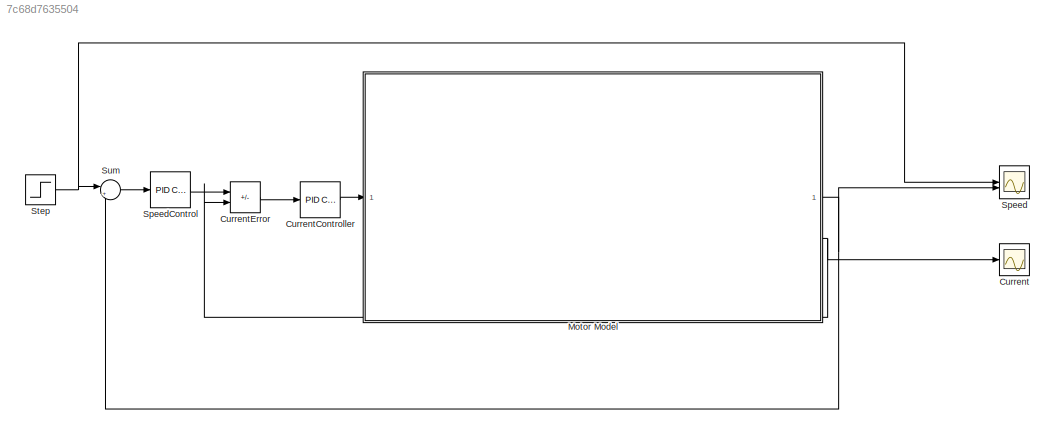
MODEL slx_7c68d7635504
KIND model
CONFIG AbsTol = auto
CONFIG EnableMultiTasking = off
CONFIG FixedStep = auto
CONFIG MaxStep = auto
CONFIG MinStep = auto
CONFIG RelTol = 1e-3
CONFIG SampleTimeConstraint = Unconstrained
CONFIG SolverName = VariableStepAuto
CONFIG StartTime = 0.0
CONFIG StopTime = 10.0
BLOCK [Scope] Current
  Floating = off
  NumInputPorts = 1
  ScopeSpecificationString = Simulink.scopes.TimeScopeBlockCfg('CurrentConfiguration', extmgr.ConfigurationSet(extmgr.Configuration('Core','General UI',true),extmgr.Configuration('Core','Source UI',true),extmgr.Configuration('Sources','WiredSimulink',true,'DataLoggingVariableName','ScopeData3'),extmgr.Configuration('Visuals','Time Domain',true,'SerializedDisplays',{struct('MinYLimReal','-5.76743','MaxYLimReal','51.90689','YLa...<+1465ch>
BLOCK [Reference] CurrentController  REF=slpidlib/PID Controller
  LibrarySourceBlock = simulink/Continuous/PID Controller
  SourceBlock = slpidlib/PID Controller
  SourceType = PID 1dof
BLOCK [Sum] CurrentError
  IconShape = rectangular
  Inputs = +-
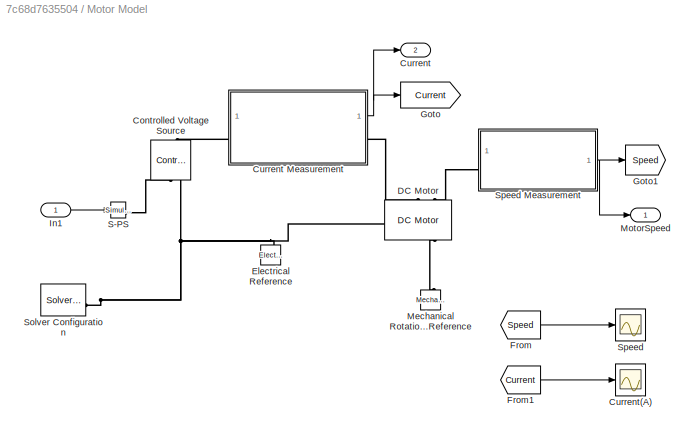
BLOCK [SubSystem] Motor Model
BLOCK [Reference] Motor Model/Controlled Voltage Source  REF=fl_lib/Electrical/Electrical Sources/Controlled Voltage
Source
  NameLocation = right
  SourceBlock = fl_lib/Electrical/Electrical Sources/Controlled Voltage\nSource
  SourceType = Controlled Voltage\nSource
BLOCK [Outport] Motor Model/Current
  Port = 2
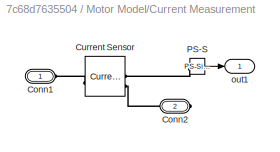
BLOCK [SubSystem] Motor Model/Current Measurement
BLOCK [PMIOPort] Motor Model/Current Measurement/Conn1
  Side = Left
BLOCK [PMIOPort] Motor Model/Current Measurement/Conn2
  Port = 2
  Side = Right
BLOCK [Reference] Motor Model/Current Measurement/Current Sensor  REF=fl_lib/Electrical/Electrical Sensors/Current Sensor
  SourceBlock = fl_lib/Electrical/Electrical Sensors/Current Sensor
  SourceType = Current Sensor
BLOCK [Reference] Motor Model/Current Measurement/PS-S  REF=nesl_utility/PS-Simulink
Converter
  SourceBlock = nesl_utility/PS-Simulink\nConverter
  SourceType = PS-Simulink\nConverter
BLOCK [Outport] Motor Model/Current Measurement/out1
BLOCK [Scope] Motor Model/Current(A)
  Floating = off
  NumInputPorts = 1
  ScopeSpecificationString = Simulink.scopes.TimeScopeBlockCfg('CurrentConfiguration', extmgr.ConfigurationSet(extmgr.Configuration('Core','General UI',true),extmgr.Configuration('Core','Source UI',true),extmgr.Configuration('Sources','WiredSimulink',true,'DataLoggingVariableName','ScopeData1'),extmgr.Configuration('Visuals','Time Domain',true,'SerializedDisplays',{struct('MinYLimReal','-24.96155','MaxYLimReal','224.65392','Y...<+1506ch>
BLOCK [Reference] Motor Model/DC Motor  REF=ee_lib/Electromechanical/Brushed Motors/DC Motor
  NameLocation = right
  SourceBlock = ee_lib/Electromechanical/Brushed Motors/DC Motor
  SourceType = DC Motor
BLOCK [Reference] Motor Model/Electrical Reference  REF=fl_lib/Electrical/Electrical Elements/Electrical Reference
  NameLocation = right
  SourceBlock = fl_lib/Electrical/Electrical Elements/Electrical Reference
  SourceType = Electrical Reference
BLOCK [From] Motor Model/From
  GotoTag = Speed
BLOCK [From] Motor Model/From1
  GotoTag = Current
BLOCK [Goto] Motor Model/Goto
  GotoTag = Current
BLOCK [Goto] Motor Model/Goto1
  GotoTag = Speed
BLOCK [Inport] Motor Model/In1
BLOCK [Reference] Motor Model/Mechanical Rotational Reference  REF=fl_lib/Mechanical/Rotational Elements/Mechanical
Rotational Reference
  NameLocation = right
  SourceBlock = fl_lib/Mechanical/Rotational Elements/Mechanical\nRotational Reference
  SourceType = Mechanical\nRotational Reference
BLOCK [Outport] Motor Model/MotorSpeed
BLOCK [Reference] Motor Model/S-PS   REF=nesl_utility/Simulink-PS
Converter
  SourceBlock = nesl_utility/Simulink-PS\nConverter
  SourceType = Simulink-PS\nConverter
BLOCK [Reference] Motor Model/Solver Configuration  REF=nesl_utility/Solver
Configuration
  SourceBlock = nesl_utility/Solver\nConfiguration
  SourceType = Solver\nConfiguration
BLOCK [Scope] Motor Model/Speed
  Floating = off
  NumInputPorts = 1
  ScopeSpecificationString = Simulink.scopes.TimeScopeBlockCfg('CurrentConfiguration', extmgr.ConfigurationSet(extmgr.Configuration('Core','General UI',true),extmgr.Configuration('Core','Source UI',true),extmgr.Configuration('Sources','WiredSimulink',true),extmgr.Configuration('Visuals','Time Domain',true,'SerializedDisplays',{struct('MinYLimReal','-1.24583','MaxYLimReal','11.21243','YLabelReal','','MinYLimMag','0.00000','Max...<+1430ch>
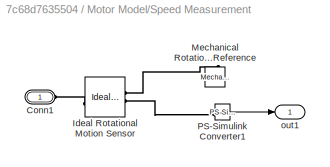
BLOCK [SubSystem] Motor Model/Speed Measurement
BLOCK [PMIOPort] Motor Model/Speed Measurement/Conn1
  Side = Left
BLOCK [Reference] Motor Model/Speed Measurement/Ideal Rotational Motion Sensor  REF=fl_lib/Mechanical/Mechanical Sensors/Ideal Rotational
Motion Sensor
  SourceBlock = fl_lib/Mechanical/Mechanical Sensors/Ideal Rotational\nMotion Sensor
  SourceType = Ideal Rotational\nMotion Sensor
BLOCK [Reference] Motor Model/Speed Measurement/Mechanical Rotational Reference  REF=fl_lib/Mechanical/Rotational Elements/Mechanical
Rotational Reference
  NameLocation = right
  SourceBlock = fl_lib/Mechanical/Rotational Elements/Mechanical\nRotational Reference
  SourceType = Mechanical\nRotational Reference
BLOCK [Reference] Motor Model/Speed Measurement/PS-Simulink Converter1  REF=nesl_utility/PS-Simulink
Converter
  SourceBlock = nesl_utility/PS-Simulink\nConverter
  SourceType = PS-Simulink\nConverter
BLOCK [Outport] Motor Model/Speed Measurement/out1
BLOCK [Scope] Speed
  Floating = off
  NumInputPorts = 2
  ScopeSpecificationString = Simulink.scopes.TimeScopeBlockCfg('CurrentConfiguration', extmgr.ConfigurationSet(extmgr.Configuration('Core','General UI',true),extmgr.Configuration('Core','Source UI',true),extmgr.Configuration('Sources','WiredSimulink',true,'DataLoggingVariableName','ScopeData2'),extmgr.Configuration('Visuals','Time Domain',true,'SerializedDisplays',{struct('MinYLimReal','-1.25','MaxYLimReal','11.25','YLabelRea...<+2182ch>
BLOCK [Reference] SpeedControl  REF=slpidlib/PID Controller
  LibrarySourceBlock = simulink/Continuous/PID Controller
  SourceBlock = slpidlib/PID Controller
  SourceType = PID 1dof
BLOCK [Step] Step
  After = 10
  SampleTime = 0
BLOCK [Sum] Sum
  Inputs = |+-
LINE CurrentController:1 -> Motor Model:1
LINE CurrentError:1 -> CurrentController:1
LINE Motor Model/Current Measurement/PS-S:1 -> Motor Model/Current Measurement/out1:1
NET Motor Model/Current Measurement:1 -> Motor Model/Current:1, Motor Model/Goto:1
LINE Motor Model/From1:1 -> Motor Model/Current(A):1
LINE Motor Model/From:1 -> Motor Model/Speed:1
LINE Motor Model/In1:1 -> Motor Model/S-PS :1
LINE Motor Model/Speed Measurement/PS-Simulink Converter1:1 -> Motor Model/Speed Measurement/out1:1
NET Motor Model/Speed Measurement:1 -> Motor Model/Goto1:1, Motor Model/MotorSpeed:1
NET Motor Model:1 -> Speed:2, Sum:2
NET Motor Model:2 -> Current:1, CurrentError:2
LINE SpeedControl:1 -> CurrentError:1
NET Step:1 -> Speed:1, Sum:1
LINE Sum:1 -> SpeedControl:1
PLINE Motor Model/Controlled Voltage Source:LConn1 -- Motor Model/Current Measurement:LConn1
PLINE Motor Model/Controlled Voltage Source:RConn1 -- Motor Model/S-PS :RConn1
PNET net1: Motor Model/Controlled Voltage Source:RConn2 -- Motor Model/DC Motor:RConn1 -- Motor Model/Electrical Reference:LConn1 -- Motor Model/Solver Configuration:RConn1
PLINE Motor Model/Current Measurement/Conn1:RConn1 -- Motor Model/Current Measurement/Current Sensor:LConn1
PLINE Motor Model/Current Measurement/Conn2:RConn1 -- Motor Model/Current Measurement/Current Sensor:RConn2
PLINE Motor Model/Current Measurement/Current Sensor:RConn1 -- Motor Model/Current Measurement/PS-S:LConn1
PLINE Motor Model/Current Measurement:RConn1 -- Motor Model/DC Motor:LConn1
PLINE Motor Model/DC Motor:LConn2 -- Motor Model/Speed Measurement:LConn1
PLINE Motor Model/DC Motor:RConn2 -- Motor Model/Mechanical Rotational Reference:LConn1
PLINE Motor Model/Speed Measurement/Conn1:RConn1 -- Motor Model/Speed Measurement/Ideal Rotational Motion Sensor:LConn1
PLINE Motor Model/Speed Measurement/Ideal Rotational Motion Sensor:RConn1 -- Motor Model/Speed Measurement/Mechanical Rotational Reference:LConn1
PLINE Motor Model/Speed Measurement/Ideal Rotational Motion Sensor:RConn2 -- Motor Model/Speed Measurement/PS-Simulink Converter1:LConn1
note: NET lines group one-source signal fan-out (src -> all destinations, sorted); 1:1 wires keep LINE; PNET lines group multi-terminal physical nets as a canonical sorted terminal list (undirected conserving connections); 2-terminal nets keep the pairwise PLINE form
